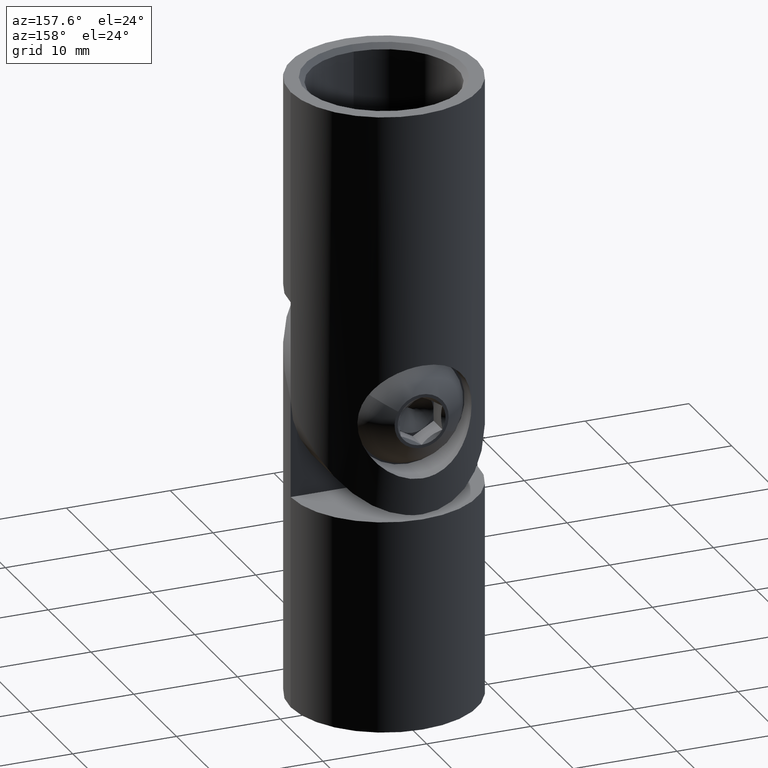
[diagram: clean part render]
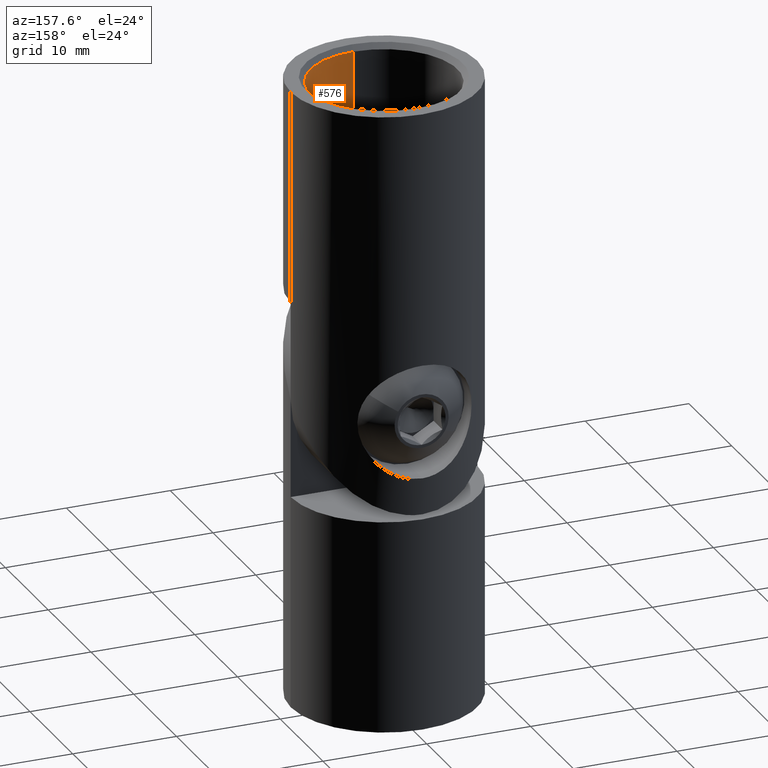
[diagram: same view with one face highlighted and labeled with its STEP entity id]
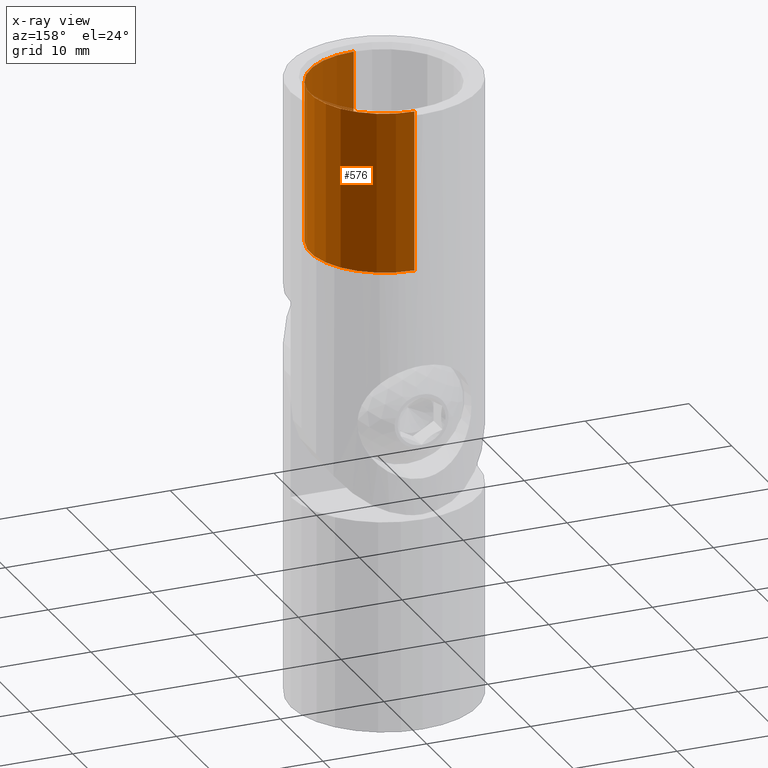
[diagram: x-ray of the same camera — body ghosted, the highlighted face saturated]
A machine part, auxiliary view. The second image highlights one B-rep face of the part: STEP entity #576.
The next image is the same camera in x-ray: the body ghosted, the highlighted face saturated — about 0% of this face is hidden behind the body in this view.
In plain terms, the highlighted cylindrical surface (partial cylindrical patch) has radius 7.1 mm, axis along (0, 0, -1).
Its self-contained STEP definition (entity closure, byte-faithful):
#495 = AXIS2_PLACEMENT_3D ( 'NONE', #12237, #9968, #8010 ) ;
#576 = ADVANCED_FACE ( 'NONE', ( #8387 ), #9533, .F. ) ;
#883 = VERTEX_POINT ( 'NONE', #5260 ) ;
#1512 = DIRECTION ( 'NONE',  ( 0.000000000000000000, 1.000000000000000000, 3.817613283399664770E-18 ) ) ;
#1547 = CIRCLE ( 'NONE', #495, 7.099999999999996092 ) ;
#2077 = VECTOR ( 'NONE', #2870, 1000.000000000000000 ) ;
#2870 = DIRECTION ( 'NONE',  ( -0.000000000000000000, 3.213806942889953164E-18, -1.000000000000000000 ) ) ;
#3150 = CARTESIAN_POINT ( 'NONE',  ( 0.000000000000000000, 7.099999999999996980, 0.2338896049042770153 ) ) ;
#3430 = CARTESIAN_POINT ( 'NONE',  ( 8.694992273946203802E-16, -7.099999999999996980, 20.00000000000000000 ) ) ;
#3585 = CARTESIAN_POINT ( 'NONE',  ( 8.694992273946203802E-16, -7.099999999999996980, 0.2338896049042769598 ) ) ;
#4143 = ORIENTED_EDGE ( 'NONE', *, *, #8001, .F. ) ;
#4710 = CARTESIAN_POINT ( 'NONE',  ( 0.000000000000000000, 7.099999999999996092, 4.500000000000000888 ) ) ;
#5260 = CARTESIAN_POINT ( 'NONE',  ( 8.694992273946201830E-16, -7.099999999999996092, 4.500000000000000888 ) ) ;
#5392 = VERTEX_POINT ( 'NONE', #3430 ) ;
#5664 = EDGE_LOOP ( 'NONE', ( #4143, #12807, #12778, #8779 ) ) ;
#5990 = CARTESIAN_POINT ( 'NONE',  ( 0.000000000000000000, 1.606903471444984093E-18, 20.00000000000000000 ) ) ;
#6126 = LINE ( 'NONE', #3585, #2077 ) ;
#6496 = DIRECTION ( 'NONE',  ( -0.000000000000000000, 3.213806942889953164E-18, -1.000000000000000000 ) ) ;
#6946 = DIRECTION ( 'NONE',  ( -0.000000000000000000, -3.213806942889965105E-18, 1.000000000000000000 ) ) ;
#7550 = LINE ( 'NONE', #3150, #12586 ) ;
#7697 = CARTESIAN_POINT ( 'NONE',  ( 0.000000000000000000, 6.513136629313289117E-17, 0.2338896049042769876 ) ) ;
#7786 = EDGE_CURVE ( 'NONE', #9308, #9594, #7550, .T. ) ;
#7971 = DIRECTION ( 'NONE',  ( 0.000000000000000000, -1.000000000000000000, 0.000000000000000000 ) ) ;
#8001 = EDGE_CURVE ( 'NONE', #5392, #883, #6126, .T. ) ;
#8010 = DIRECTION ( 'NONE',  ( 0.000000000000000000, 1.000000000000000000, 0.000000000000000000 ) ) ;
#8387 = FACE_OUTER_BOUND ( 'NONE', #5664, .T. ) ;
#8779 = ORIENTED_EDGE ( 'NONE', *, *, #11374, .T. ) ;
#8780 = AXIS2_PLACEMENT_3D ( 'NONE', #7697, #6496, #1512 ) ;
#8826 = AXIS2_PLACEMENT_3D ( 'NONE', #5990, #6946, #7971 ) ;
#9308 = VERTEX_POINT ( 'NONE', #9504 ) ;
#9504 = CARTESIAN_POINT ( 'NONE',  ( 0.000000000000000000, 7.099999999999996980, 20.00000000000000000 ) ) ;
#9533 = CYLINDRICAL_SURFACE ( 'NONE', #8780, 7.099999999999996980 ) ;
#9594 = VERTEX_POINT ( 'NONE', #4710 ) ;
#9968 = DIRECTION ( 'NONE',  ( -0.000000000000000000, 3.213806942889953164E-18, -1.000000000000000000 ) ) ;
#11349 = EDGE_CURVE ( 'NONE', #5392, #9308, #12396, .T. ) ;
#11374 = EDGE_CURVE ( 'NONE', #9594, #883, #1547, .T. ) ;
#12237 = CARTESIAN_POINT ( 'NONE',  ( 0.000000000000000000, 5.142091108623925063E-17, 4.500000000000000888 ) ) ;
#12396 = CIRCLE ( 'NONE', #8826, 7.099999999999996980 ) ;
#12438 = DIRECTION ( 'NONE',  ( -0.000000000000000000, 3.213806942889953164E-18, -1.000000000000000000 ) ) ;
#12586 = VECTOR ( 'NONE', #12438, 1000.000000000000000 ) ;
#12778 = ORIENTED_EDGE ( 'NONE', *, *, #7786, .T. ) ;
#12807 = ORIENTED_EDGE ( 'NONE', *, *, #11349, .T. ) ;